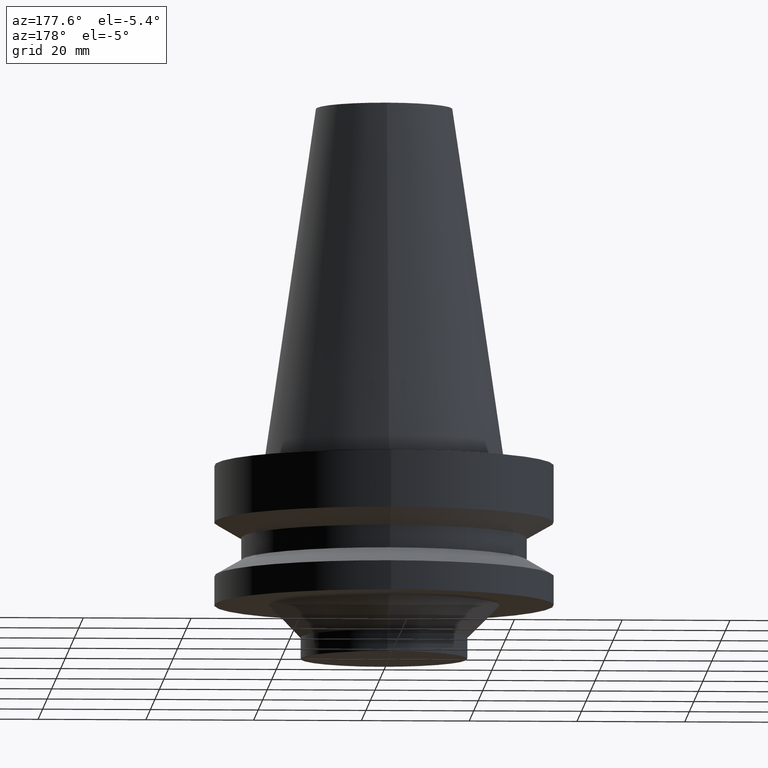
[diagram: clean part render]
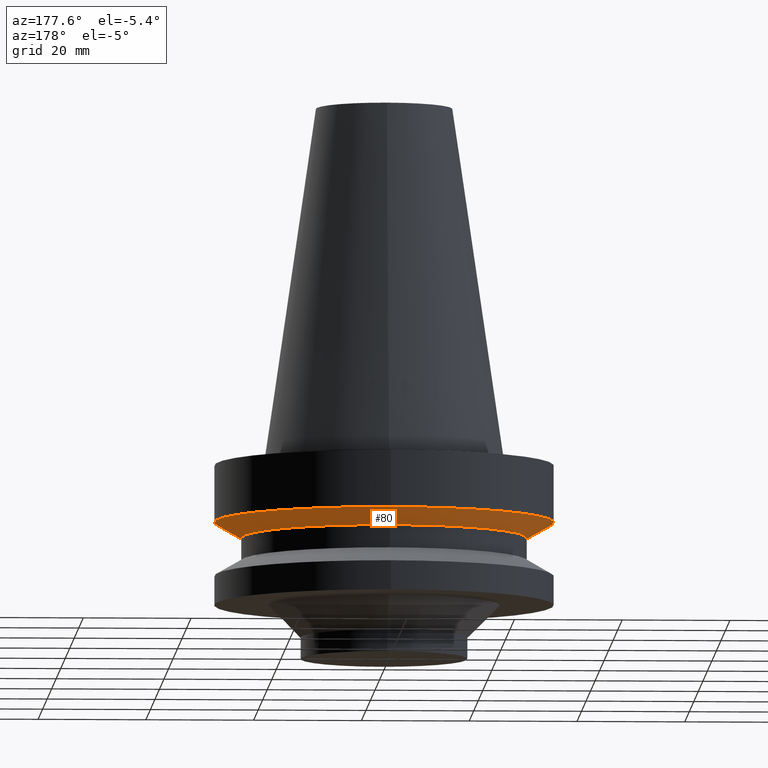
[diagram: same view with one face highlighted and labeled with its STEP entity id]
A machine part, auxiliary view. The second image highlights one B-rep face of the part: STEP entity #80.
In plain terms, the highlighted conical surface has half-angle 60 deg.
Its self-contained STEP definition (entity closure, byte-faithful):
#80=ADVANCED_FACE('',(#103,#104),#105,.T.);
#103=FACE_BOUND('',#140,.T.);
#104=FACE_BOUND('',#141,.T.);
#105=CONICAL_SURFACE('',#142,29.0,1.04719755058882);
#140=EDGE_LOOP('',(#187));
#141=EDGE_LOOP('',(#188));
#142=AXIS2_PLACEMENT_3D('',#189,#190,#191);
#187=ORIENTED_EDGE('',*,*,#231,.F.);
#188=ORIENTED_EDGE('',*,*,#230,.T.);
#189=CARTESIAN_POINT('',(7.9867641352326E-016,1.59735282704652E-015,-13.043375675));
#190=DIRECTION('',(-6.12323399573677E-017,-1.22464679914735E-016,1.0));
#191=DIRECTION('',(-1.23259516440783E-032,1.0,1.22464679914735E-016));
#230=EDGE_CURVE('',#246,#246,#247,.T.);
#231=EDGE_CURVE('',#248,#248,#249,.T.);
#246=VERTEX_POINT('',#270);
#247=CIRCLE('',#271,31.5);
#248=VERTEX_POINT('',#272);
#249=CIRCLE('',#273,26.5);
#270=CARTESIAN_POINT('',(7.10295143505464E-016,31.5,-11.6));
#271=AXIS2_PLACEMENT_3D('',#298,#299,#300);
#272=CARTESIAN_POINT('',(8.87057683541055E-016,26.5,-14.48675135));
#273=AXIS2_PLACEMENT_3D('',#301,#302,#303);
#298=CARTESIAN_POINT('',(7.10295143505465E-016,1.42059028701093E-015,-11.6));
#299=DIRECTION('',(6.12323399573677E-017,1.22464679914735E-016,-1.0));
#300=DIRECTION('',(-1.23259516440783E-032,1.0,1.22464679914735E-016));
#301=CARTESIAN_POINT('',(8.87057683541055E-016,1.77411536708211E-015,-14.48675135));
#302=DIRECTION('',(6.12323399573677E-017,1.22464679914735E-016,-1.0));
#303=DIRECTION('',(-1.23259516440783E-032,1.0,1.22464679914735E-016));